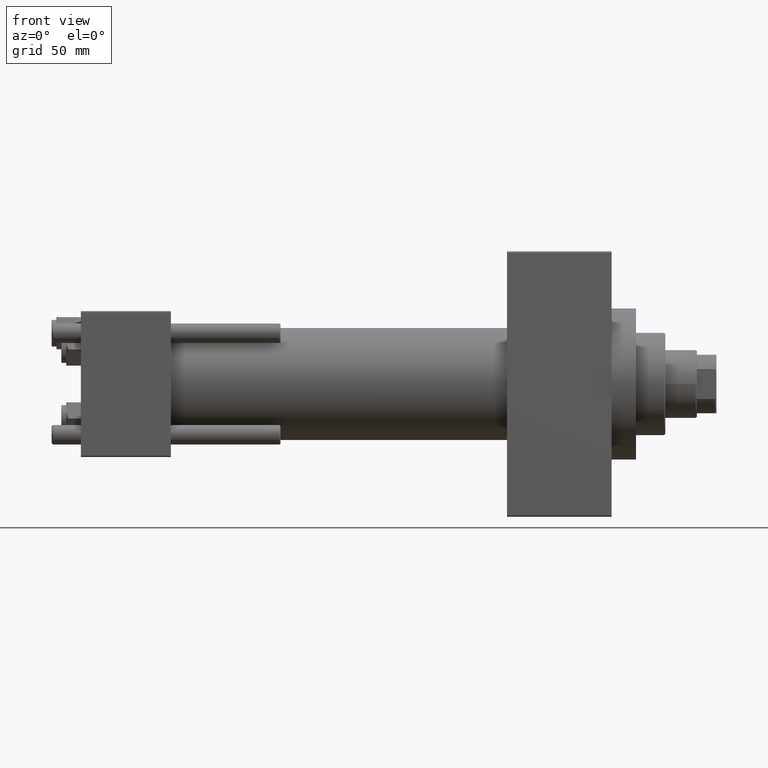
[diagram: clean part render]
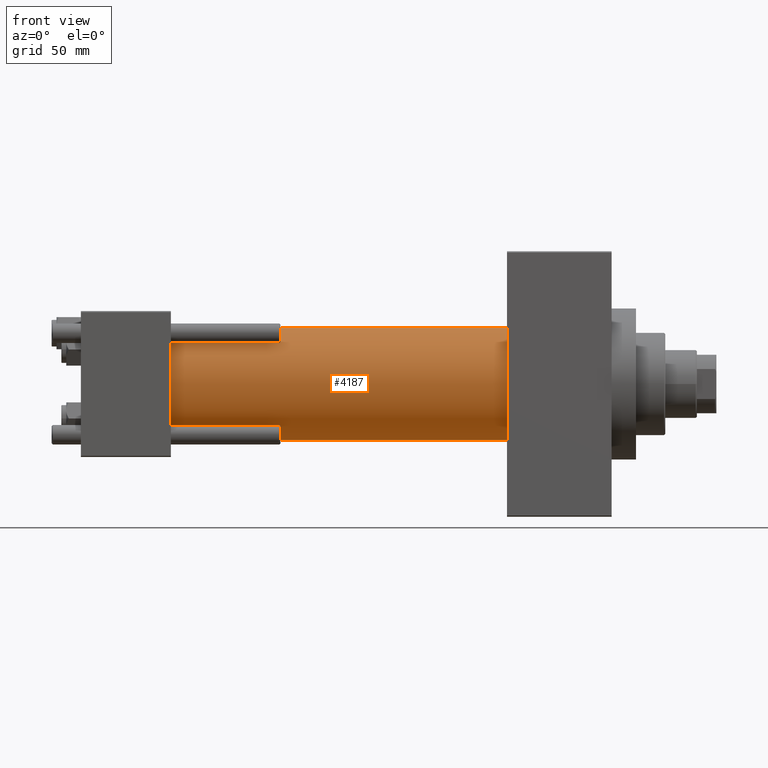
[diagram: same view with one face highlighted and labeled with its STEP entity id]
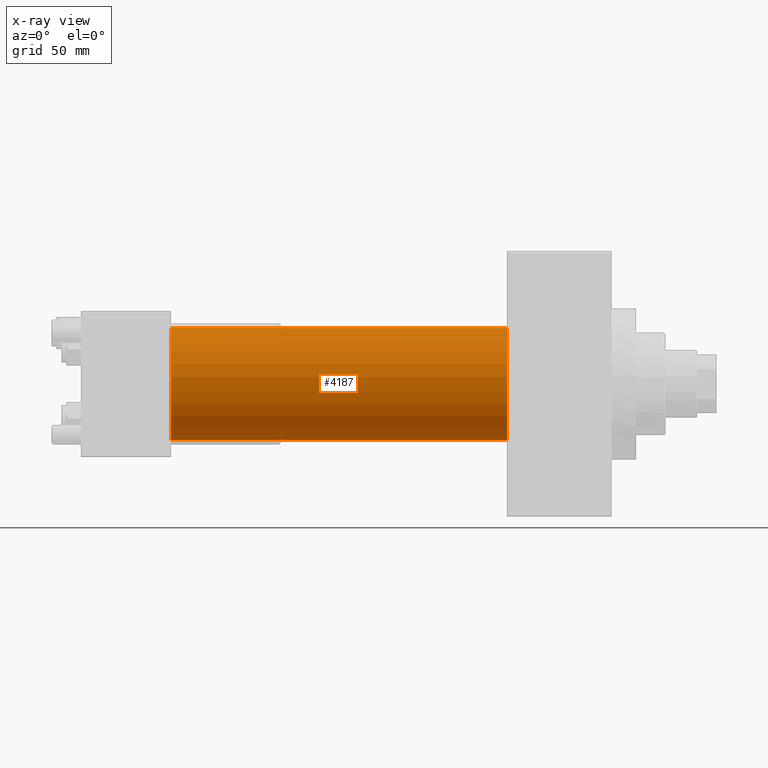
[diagram: x-ray of the same camera — body ghosted, the highlighted face saturated]
A machine part, front view. The second image highlights one B-rep face of the part: STEP entity #4187.
The next image is the same camera in x-ray: the body ghosted, the highlighted face saturated — about 0% of this face is hidden behind the body in this view.
In plain terms, the highlighted cylindrical surface (partial cylindrical patch) has radius 23 mm, axis along (-1, -0, -0).
Its self-contained STEP definition (entity closure, byte-faithful):
#2201 = CIRCLE ( 'NONE', #27905, 23.00000000000000000 ) ;
#2548 = DIRECTION ( 'NONE',  ( 0.000000000000000000, 0.000000000000000000, -1.000000000000000000 ) ) ;
#2574 = CARTESIAN_POINT ( 'NONE',  ( 175.0000000000000284, -2.602085213965210642E-15, 23.00000000000000000 ) ) ;
#3874 = CARTESIAN_POINT ( 'NONE',  ( 175.0000000000000284, 2.146024240737016609E-16, -23.00000000000000000 ) ) ;
#3983 = EDGE_LOOP ( 'NONE', ( #12361, #20961, #23178, #6020 ) ) ;
#4187 = ADVANCED_FACE ( 'NONE', ( #46660 ), #22184, .T. ) ;
#6020 = ORIENTED_EDGE ( 'NONE', *, *, #24264, .T. ) ;
#6174 = DIRECTION ( 'NONE',  ( -1.000000000000000000, -0.000000000000000000, -0.000000000000000000 ) ) ;
#6453 = CARTESIAN_POINT ( 'NONE',  ( 175.0000000000000284, 2.146024240737016609E-16, -23.00000000000000000 ) ) ;
#8356 = AXIS2_PLACEMENT_3D ( 'NONE', #25454, #22526, #40320 ) ;
#9396 = LINE ( 'NONE', #6453, #39523 ) ;
#10409 = CARTESIAN_POINT ( 'NONE',  ( 37.00000000000000711, 2.146024240737016609E-16, -23.00000000000000000 ) ) ;
#12361 = ORIENTED_EDGE ( 'NONE', *, *, #30148, .F. ) ;
#13413 = CARTESIAN_POINT ( 'NONE',  ( 37.00000000000000711, -2.602085213965210642E-15, 23.00000000000000000 ) ) ;
#15320 = VERTEX_POINT ( 'NONE', #2574 ) ;
#17355 = VERTEX_POINT ( 'NONE', #13413 ) ;
#20811 = CIRCLE ( 'NONE', #8356, 23.00000000000000000 ) ;
#20858 = CARTESIAN_POINT ( 'NONE',  ( 175.0000000000000284, -2.602085213965210642E-15, 0.000000000000000000 ) ) ;
#20961 = ORIENTED_EDGE ( 'NONE', *, *, #30975, .F. ) ;
#21331 = DIRECTION ( 'NONE',  ( -1.000000000000000000, -0.000000000000000000, -0.000000000000000000 ) ) ;
#22184 = CYLINDRICAL_SURFACE ( 'NONE', #42409, 23.00000000000000000 ) ;
#22526 = DIRECTION ( 'NONE',  ( 1.000000000000000000, -0.000000000000000000, 0.000000000000000000 ) ) ;
#23178 = ORIENTED_EDGE ( 'NONE', *, *, #29823, .T. ) ;
#24264 = EDGE_CURVE ( 'NONE', #17355, #32648, #20811, .T. ) ;
#25454 = CARTESIAN_POINT ( 'NONE',  ( 37.00000000000000711, -2.602085213965210642E-15, 0.000000000000000000 ) ) ;
#27905 = AXIS2_PLACEMENT_3D ( 'NONE', #20858, #43302, #2548 ) ;
#28835 = LINE ( 'NONE', #46655, #29421 ) ;
#29421 = VECTOR ( 'NONE', #6174, 1000.000000000000000 ) ;
#29823 = EDGE_CURVE ( 'NONE', #15320, #17355, #28835, .T. ) ;
#30148 = EDGE_CURVE ( 'NONE', #31834, #32648, #9396, .T. ) ;
#30975 = EDGE_CURVE ( 'NONE', #15320, #31834, #2201, .T. ) ;
#31532 = DIRECTION ( 'NONE',  ( 0.000000000000000000, 0.000000000000000000, 1.000000000000000000 ) ) ;
#31765 = DIRECTION ( 'NONE',  ( -1.000000000000000000, -0.000000000000000000, -0.000000000000000000 ) ) ;
#31834 = VERTEX_POINT ( 'NONE', #3874 ) ;
#32648 = VERTEX_POINT ( 'NONE', #10409 ) ;
#37046 = CARTESIAN_POINT ( 'NONE',  ( 175.0000000000000284, -2.602085213965210642E-15, 0.000000000000000000 ) ) ;
#39523 = VECTOR ( 'NONE', #21331, 1000.000000000000000 ) ;
#40320 = DIRECTION ( 'NONE',  ( 0.000000000000000000, 0.000000000000000000, 1.000000000000000000 ) ) ;
#42409 = AXIS2_PLACEMENT_3D ( 'NONE', #37046, #31765, #31532 ) ;
#43302 = DIRECTION ( 'NONE',  ( 1.000000000000000000, 0.000000000000000000, 0.000000000000000000 ) ) ;
#46655 = CARTESIAN_POINT ( 'NONE',  ( 175.0000000000000284, -2.602085213965210642E-15, 23.00000000000000000 ) ) ;
#46660 = FACE_OUTER_BOUND ( 'NONE', #3983, .T. ) ;